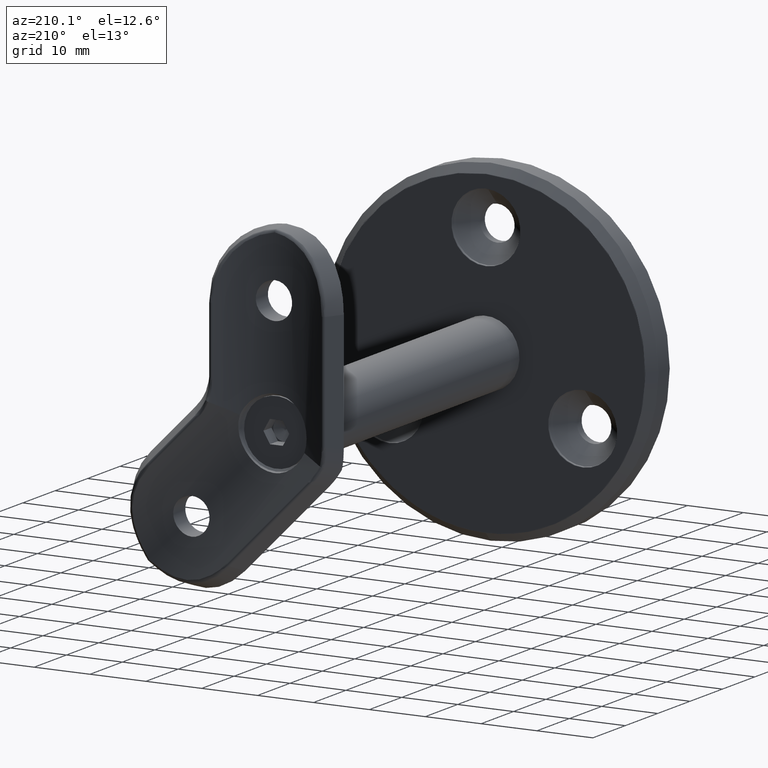
[diagram: clean part render]
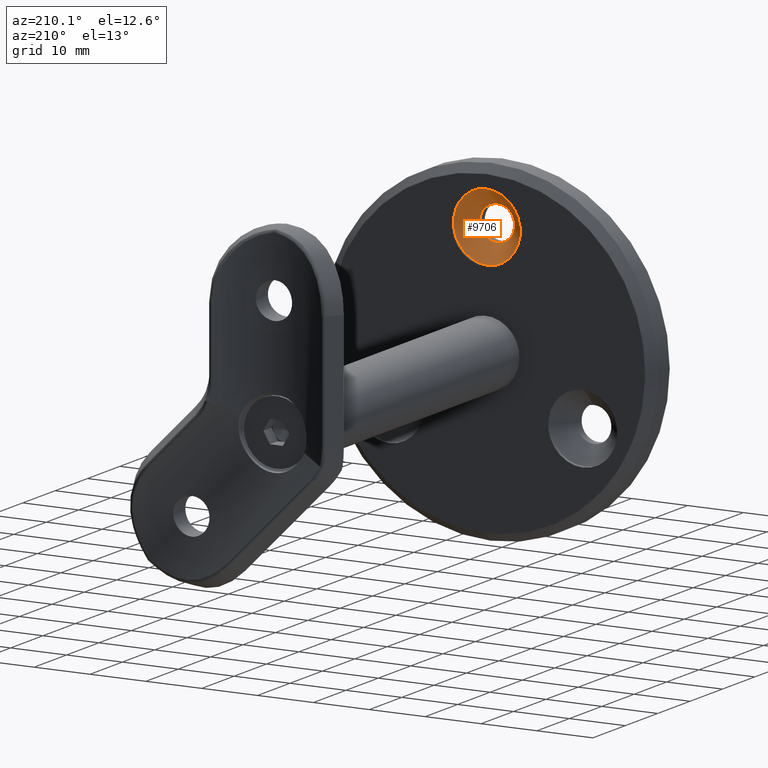
[diagram: same view with one face highlighted and labeled with its STEP entity id]
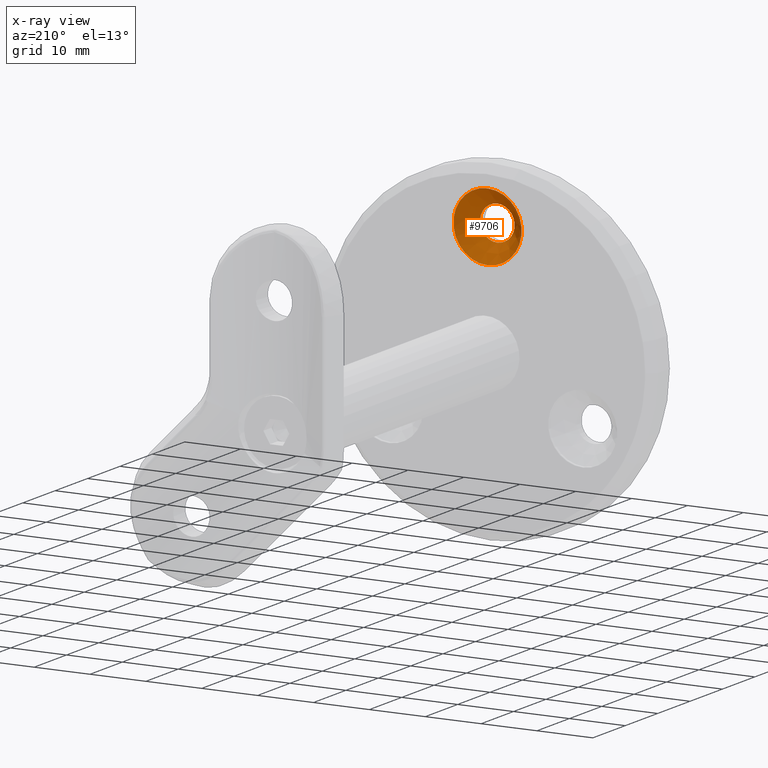
[diagram: x-ray of the same camera — body ghosted, the highlighted face saturated]
A machine part, auxiliary view. The second image highlights one B-rep face of the part: STEP entity #9706.
The next image is the same camera in x-ray: the body ghosted, the highlighted face saturated — about 0% of this face is hidden behind the body in this view.
In plain terms, the highlighted conical surface has half-angle 45 deg.
Its self-contained STEP definition (entity closure, byte-faithful):
#624 = DIRECTION ( 'NONE',  ( -0.000000000000000000, 1.000000000000000000, -0.000000000000000000 ) ) ;
#2096 = DIRECTION ( 'NONE',  ( 0.000000000000000000, 0.000000000000000000, 1.000000000000000000 ) ) ;
#3612 = FACE_BOUND ( 'NONE', #13634, .T. ) ;
#4224 = CONICAL_SURFACE ( 'NONE', #12277, 6.099999999999997868, 0.7853981633974485010 ) ;
#4339 = CIRCLE ( 'NONE', #8591, 6.099999999999997868 ) ;
#5323 = DIRECTION ( 'NONE',  ( -0.000000000000000000, 1.000000000000000000, -0.000000000000000000 ) ) ;
#6152 = VERTEX_POINT ( 'NONE', #14561 ) ;
#6691 = CARTESIAN_POINT ( 'NONE',  ( 0.000000000000000000, 4.500000000000000888, 20.00000000000000000 ) ) ;
#7169 = EDGE_CURVE ( 'NONE', #6152, #6152, #16076, .T. ) ;
#7877 = ORIENTED_EDGE ( 'NONE', *, *, #16946, .T. ) ;
#8003 = ORIENTED_EDGE ( 'NONE', *, *, #7169, .F. ) ;
#8591 = AXIS2_PLACEMENT_3D ( 'NONE', #16613, #14229, #2096 ) ;
#9264 = CARTESIAN_POINT ( 'NONE',  ( 0.000000000000000000, 4.500000000000000888, 26.09999999999999787 ) ) ;
#9706 = ADVANCED_FACE ( 'NONE', ( #3612, #11777 ), #4224, .F. ) ;
#11204 = DIRECTION ( 'NONE',  ( 0.000000000000000000, 0.000000000000000000, 1.000000000000000000 ) ) ;
#11777 = FACE_OUTER_BOUND ( 'NONE', #14033, .T. ) ;
#12277 = AXIS2_PLACEMENT_3D ( 'NONE', #6691, #5323, #16086 ) ;
#12385 = AXIS2_PLACEMENT_3D ( 'NONE', #12769, #624, #11204 ) ;
#12516 = VERTEX_POINT ( 'NONE', #9264 ) ;
#12769 = CARTESIAN_POINT ( 'NONE',  ( 0.000000000000000000, 1.500000000000001332, 20.00000000000000000 ) ) ;
#13634 = EDGE_LOOP ( 'NONE', ( #8003 ) ) ;
#14033 = EDGE_LOOP ( 'NONE', ( #7877 ) ) ;
#14229 = DIRECTION ( 'NONE',  ( -0.000000000000000000, 1.000000000000000000, -0.000000000000000000 ) ) ;
#14561 = CARTESIAN_POINT ( 'NONE',  ( 0.000000000000000000, 1.500000000000001332, 23.09999999999999787 ) ) ;
#16076 = CIRCLE ( 'NONE', #12385, 3.099999999999998757 ) ;
#16086 = DIRECTION ( 'NONE',  ( 0.000000000000000000, 0.000000000000000000, 1.000000000000000000 ) ) ;
#16613 = CARTESIAN_POINT ( 'NONE',  ( 0.000000000000000000, 4.500000000000000888, 20.00000000000000000 ) ) ;
#16946 = EDGE_CURVE ( 'NONE', #12516, #12516, #4339, .T. ) ;